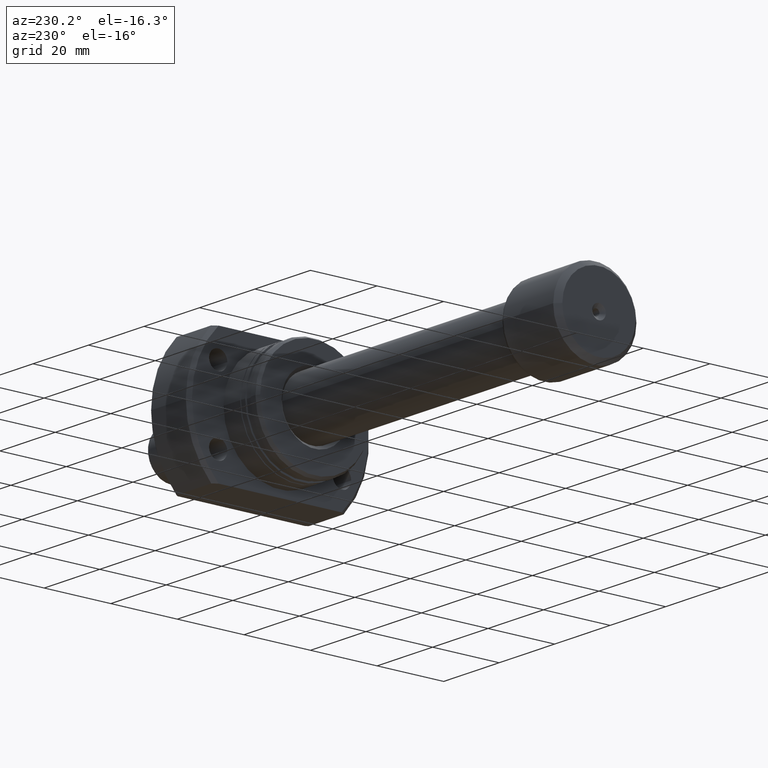
[diagram: clean part render]
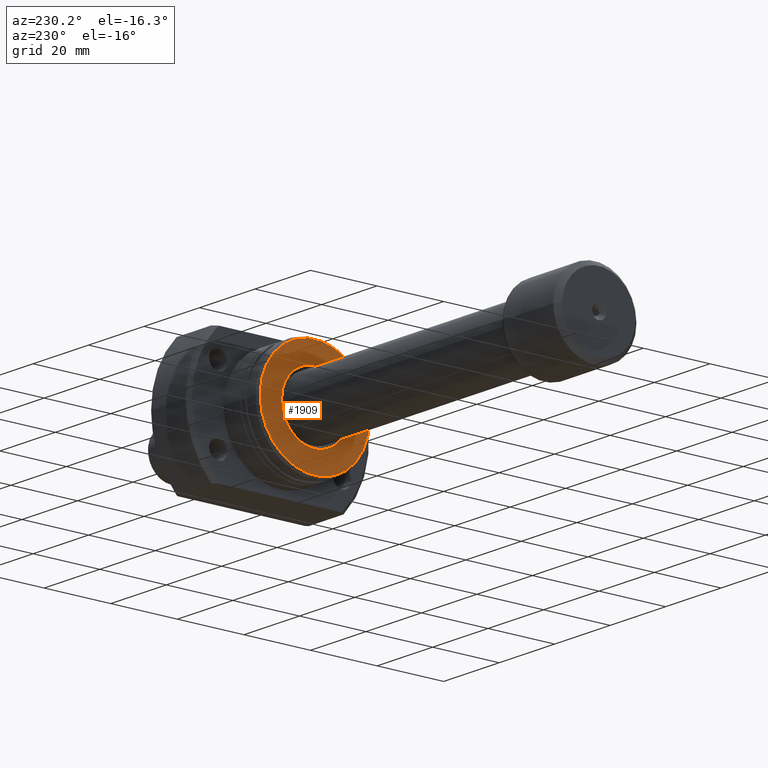
[diagram: same view with one face highlighted and labeled with its STEP entity id]
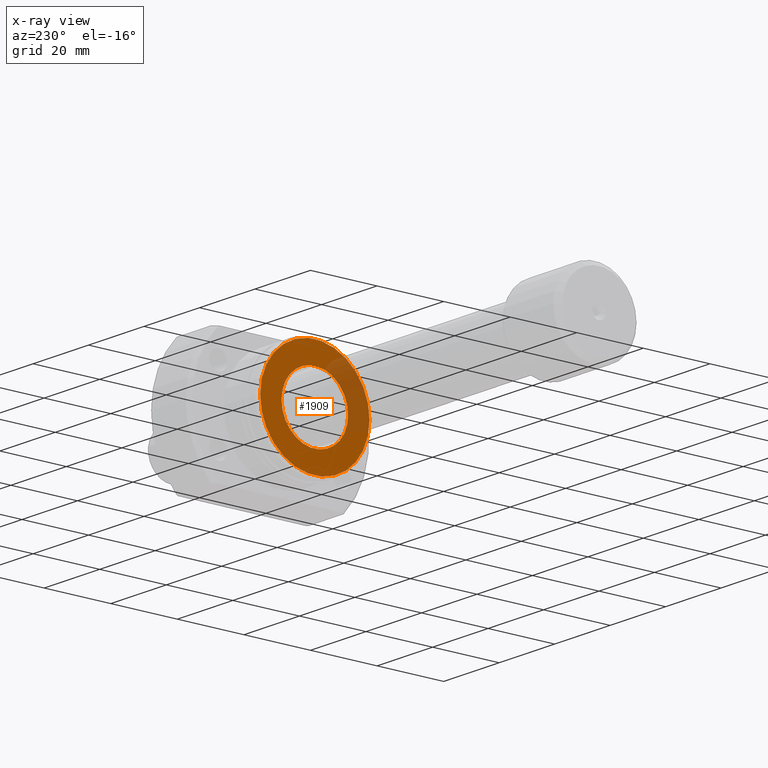
[diagram: x-ray of the same camera — body ghosted, the highlighted face saturated]
A machine part, auxiliary view. The second image highlights one B-rep face of the part: STEP entity #1909.
The next image is the same camera in x-ray: the body ghosted, the highlighted face saturated — about 23% of this face is hidden behind the body in this view.
In plain terms, the highlighted planar face has unit normal (1, 0, 0).
Its self-contained STEP definition (entity closure, byte-faithful):
#25 = AXIS2_PLACEMENT_3D ( 'NONE', #3566, #702, #2678 ) ;
#70 = DIRECTION ( 'NONE',  ( -9.242617352055502386E-18, 1.000000000000000000, 0.000000000000000000 ) ) ;
#157 = CIRCLE ( 'NONE', #575, 16.42264973081037027 ) ;
#449 = AXIS2_PLACEMENT_3D ( 'NONE', #3070, #2803, #1479 ) ;
#485 = DIRECTION ( 'NONE',  ( -9.242617352055494682E-18, 1.000000000000000000, 0.000000000000000000 ) ) ;
#511 = CIRCLE ( 'NONE', #1209, 16.42264973081037027 ) ;
#575 = AXIS2_PLACEMENT_3D ( 'NONE', #1049, #3010, #485 ) ;
#615 = CARTESIAN_POINT ( 'NONE',  ( 3.317658684584896851E-15, 16.42264973081037027, 0.000000000000000000 ) ) ;
#638 = FACE_BOUND ( 'NONE', #3154, .T. ) ;
#702 = DIRECTION ( 'NONE',  ( 1.000000000000000000, 9.242617352055502386E-18, -0.000000000000000000 ) ) ;
#724 = DIRECTION ( 'NONE',  ( -9.242617352055494682E-18, 1.000000000000000000, 0.000000000000000000 ) ) ;
#851 = EDGE_CURVE ( 'NONE', #1727, #3255, #1326, .T. ) ;
#1005 = CARTESIAN_POINT ( 'NONE',  ( 9.297031376334609942E-16, -9.999999999999717559, 0.000000000000000000 ) ) ;
#1026 = ORIENTED_EDGE ( 'NONE', *, *, #2798, .F. ) ;
#1049 = CARTESIAN_POINT ( 'NONE',  ( 3.469446951953614189E-15, 4.814824860968089633E-32, 0.000000000000000000 ) ) ;
#1209 = AXIS2_PLACEMENT_3D ( 'NONE', #3267, #1882, #724 ) ;
#1326 = CIRCLE ( 'NONE', #449, 10.00000000000029310 ) ;
#1416 = VERTEX_POINT ( 'NONE', #1465 ) ;
#1465 = CARTESIAN_POINT ( 'NONE',  ( 3.621235219322331921E-15, -16.42264973081037027, 2.046547050593003144E-15 ) ) ;
#1479 = DIRECTION ( 'NONE',  ( -9.242617352055507008E-18, 1.000000000000000000, 0.000000000000000000 ) ) ;
#1507 = CIRCLE ( 'NONE', #25, 10.00000000000029310 ) ;
#1680 = AXIS2_PLACEMENT_3D ( 'NONE', #2613, #2624, #70 ) ;
#1727 = VERTEX_POINT ( 'NONE', #1898 ) ;
#1781 = EDGE_CURVE ( 'NONE', #3255, #1727, #1507, .T. ) ;
#1817 = FACE_OUTER_BOUND ( 'NONE', #3503, .T. ) ;
#1882 = DIRECTION ( 'NONE',  ( 1.000000000000000000, 9.242617352055502386E-18, -0.000000000000000000 ) ) ;
#1898 = CARTESIAN_POINT ( 'NONE',  ( 9.297031376334609942E-16, 10.00000000000029310, 1.224646799147388952E-15 ) ) ;
#1909 = ADVANCED_FACE ( 'NONE', ( #638, #1817 ), #2394, .F. ) ;
#2394 = PLANE ( 'NONE',  #1680 ) ;
#2613 = CARTESIAN_POINT ( 'NONE',  ( 9.297031376334383144E-16, 8.592890352151261741E-33, 0.000000000000000000 ) ) ;
#2624 = DIRECTION ( 'NONE',  ( 1.000000000000000000, 9.242617352055502386E-18, -0.000000000000000000 ) ) ;
#2678 = DIRECTION ( 'NONE',  ( -9.242617352055507008E-18, 1.000000000000000000, 0.000000000000000000 ) ) ;
#2682 = ORIENTED_EDGE ( 'NONE', *, *, #1781, .T. ) ;
#2798 = EDGE_CURVE ( 'NONE', #3571, #1416, #511, .T. ) ;
#2803 = DIRECTION ( 'NONE',  ( 1.000000000000000000, 9.242617352055502386E-18, -0.000000000000000000 ) ) ;
#2926 = ORIENTED_EDGE ( 'NONE', *, *, #3172, .F. ) ;
#3010 = DIRECTION ( 'NONE',  ( 1.000000000000000000, 9.242617352055502386E-18, -0.000000000000000000 ) ) ;
#3070 = CARTESIAN_POINT ( 'NONE',  ( 9.297031376334609942E-16, 7.380088410503559366E-29, 0.000000000000000000 ) ) ;
#3154 = EDGE_LOOP ( 'NONE', ( #2682, #3264 ) ) ;
#3172 = EDGE_CURVE ( 'NONE', #1416, #3571, #157, .T. ) ;
#3255 = VERTEX_POINT ( 'NONE', #1005 ) ;
#3264 = ORIENTED_EDGE ( 'NONE', *, *, #851, .T. ) ;
#3267 = CARTESIAN_POINT ( 'NONE',  ( 3.469446951953614189E-15, 4.814824860968089633E-32, 0.000000000000000000 ) ) ;
#3503 = EDGE_LOOP ( 'NONE', ( #1026, #2926 ) ) ;
#3566 = CARTESIAN_POINT ( 'NONE',  ( 9.297031376334609942E-16, 7.380088410503559366E-29, 0.000000000000000000 ) ) ;
#3571 = VERTEX_POINT ( 'NONE', #615 ) ;